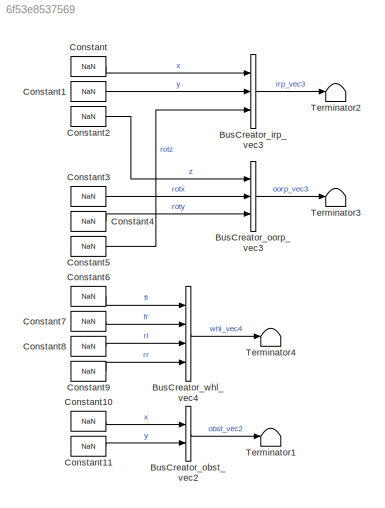
MODEL slx_6f53e8537569
KIND model
CONFIG InitFcn = %clear; \n%load('vectors_busformats.mat')
CONFIG StartFcn = %clear; \n%BJ_test_init;
BLOCK [BusCreator] BusCreator_irp_vec3
  DisplayOption = bar
  Inputs = 3
  Ports = [3, 1]
BLOCK [BusCreator] BusCreator_obst_vec2
  DisplayOption = bar
  Inputs = 2
  Ports = [2, 1]
BLOCK [BusCreator] BusCreator_oorp_vec3
  DisplayOption = bar
  Inputs = 3
  Ports = [3, 1]
BLOCK [BusCreator] BusCreator_whl_vec4
  DisplayOption = bar
  Ports = [4, 1]
BLOCK [Constant] Constant
  Value = NaN
BLOCK [Constant] Constant1
  Value = NaN
BLOCK [Constant] Constant10
  Value = NaN
BLOCK [Constant] Constant11
  Value = NaN
BLOCK [Constant] Constant2
  Value = NaN
BLOCK [Constant] Constant3
  Value = NaN
BLOCK [Constant] Constant4
  Value = NaN
BLOCK [Constant] Constant5
  Value = NaN
BLOCK [Constant] Constant6
  Value = NaN
BLOCK [Constant] Constant7
  Value = NaN
BLOCK [Constant] Constant8
  Value = NaN
BLOCK [Constant] Constant9
  Value = NaN
BLOCK [Terminator] Terminator1
BLOCK [Terminator] Terminator2
BLOCK [Terminator] Terminator3
BLOCK [Terminator] Terminator4
LINE BusCreator_irp_vec3:1 -> Terminator2:1
LINE BusCreator_obst_vec2:1 -> Terminator1:1
LINE BusCreator_oorp_vec3:1 -> Terminator3:1
LINE BusCreator_whl_vec4:1 -> Terminator4:1
LINE Constant10:1 -> BusCreator_obst_vec2:1
LINE Constant11:1 -> BusCreator_obst_vec2:2
LINE Constant1:1 -> BusCreator_irp_vec3:2
LINE Constant2:1 -> BusCreator_oorp_vec3:1
LINE Constant3:1 -> BusCreator_oorp_vec3:2
LINE Constant4:1 -> BusCreator_oorp_vec3:3
LINE Constant5:1 -> BusCreator_irp_vec3:3
LINE Constant6:1 -> BusCreator_whl_vec4:1
LINE Constant7:1 -> BusCreator_whl_vec4:2
LINE Constant8:1 -> BusCreator_whl_vec4:3
LINE Constant9:1 -> BusCreator_whl_vec4:4
LINE Constant:1 -> BusCreator_irp_vec3:1
